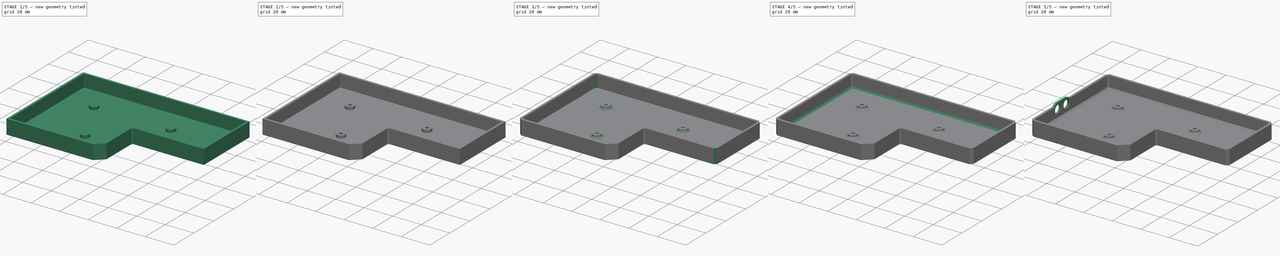
[diagram: build sequence overview — one tinted view per stage of 5, left to right]
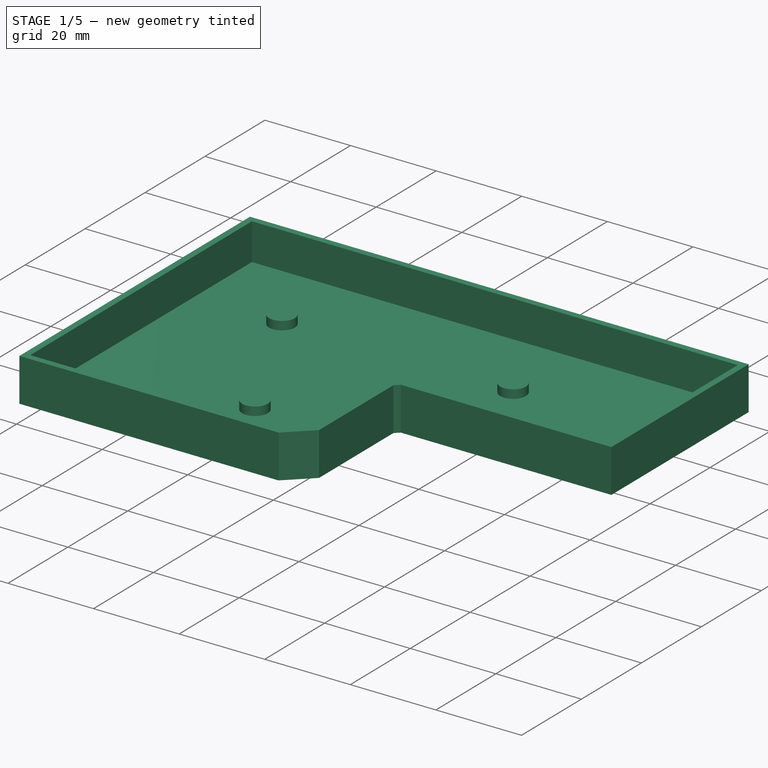
[diagram: stage 1 of 5 — iso view after this stage's code; geometry added in this stage tinted green]
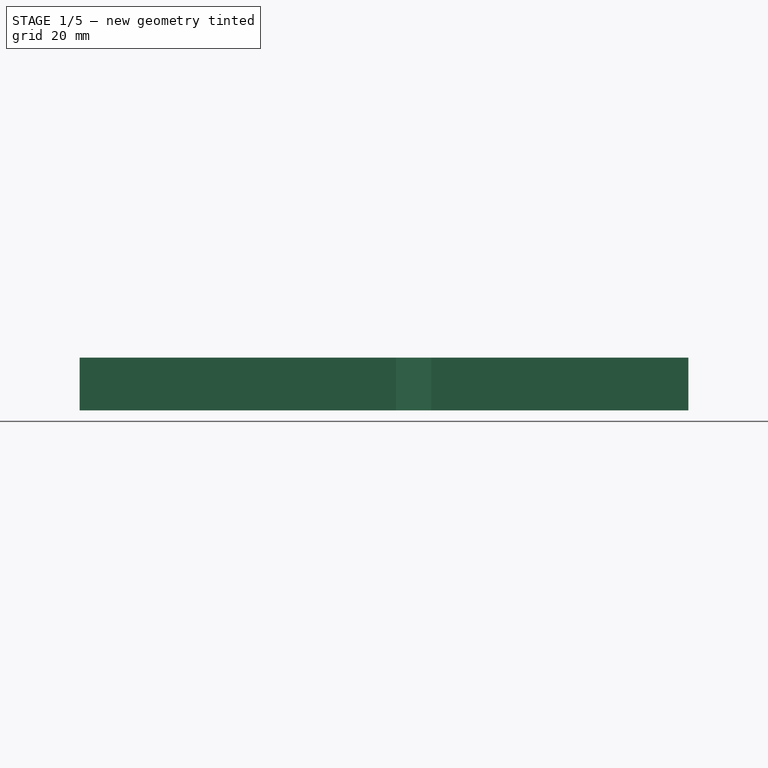
[diagram: stage 1 of 5 — front view after this stage's code; geometry added in this stage tinted green]
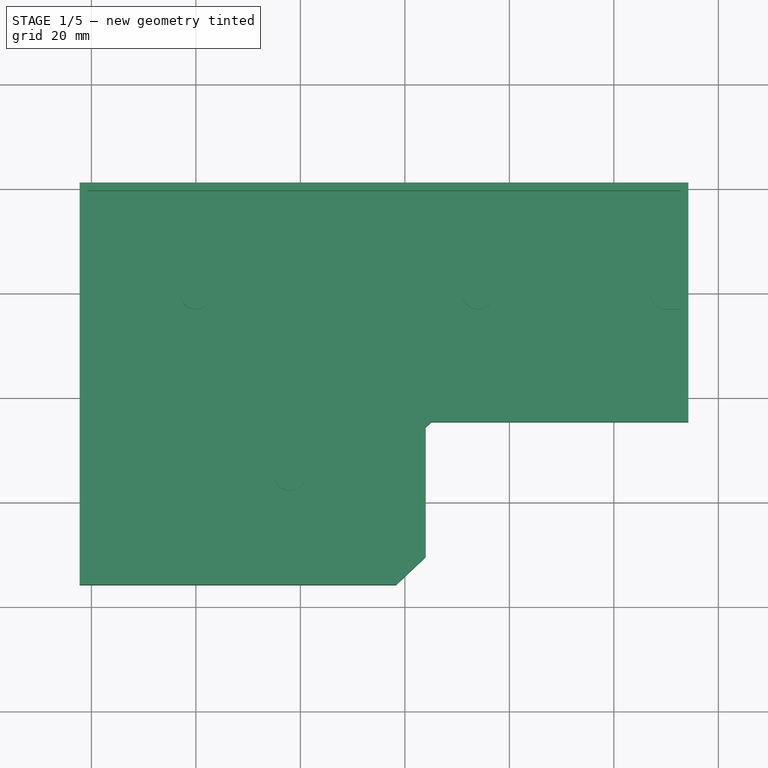
[diagram: stage 1 of 5 — top view after this stage's code; geometry added in this stage tinted green]
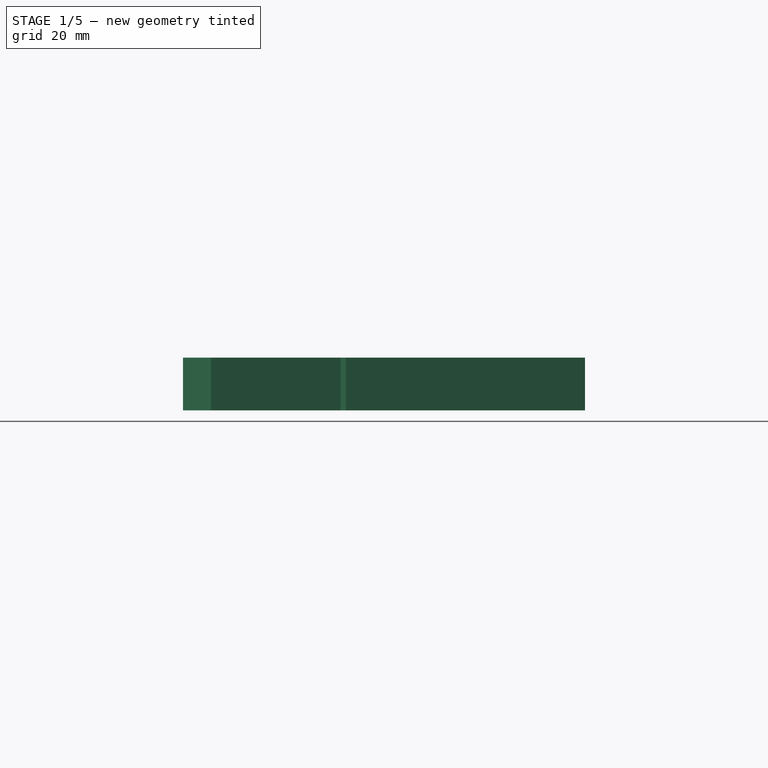
[diagram: stage 1 of 5 — right view after this stage's code; geometry added in this stage tinted green]
FCSTD DOCUMENT  (FreeCAD 1.0R39319 (Git))
Label: kb-r
License: All rights reserved
LicenseURL: https://en.wikipedia.org/wiki/All_rights_reserved
objects: Sketcher::SketchObject×11, PartDesign::Pad×6, PartDesign::Pocket×5, PartDesign::Chamfer×4, PartDesign::Fillet×1, PartDesign::Body×1
note: 71 computed .brp shape members not serialized (recipe doc carries the construction recipe); baked Part::Feature solids carry a one-line shape summary decoded from their .brp

FEATURE [Sketcher::SketchObject] Sketch
  ArcFitTolerance = 1e-06
  AttachmentSupport = -> [XY_Plane]
  FullyConstrained = false
  MakeInternals = false
  MapMode = 5
  expr: Constraints[33] = .Constraints.off
  expr: Constraints[34] = .Constraints.off
  expr: Constraints[35] = .Constraints.off
  expr: Constraints[36] = .Constraints.off
  expr: Constraints[37] = .Constraints.off
  expr: Constraints[38] = .Constraints.off
  expr: Constraints[39] = .Constraints.off
  sketch-geometry (16):
    g0: LineSegment [constr] StartX=-20.25 StartY=19.125 StartZ=0 EndX=-20.25 EndY=-53.833 EndZ=0
    g1: LineSegment [constr] StartX=-20.25 StartY=-53.833 StartZ=0 EndX=37.5 EndY=-53.833 EndZ=0
    g2: LineSegment [constr] StartX=37.5 StartY=-53.833 StartZ=0 EndX=42 EndY=-49.583 EndZ=0
    g3: LineSegment [constr] StartX=42 StartY=-49.583 StartZ=0 EndX=42 EndY=-24.792 EndZ=0
    g4: LineSegment [constr] StartX=42 StartY=-24.792 StartZ=0 EndX=44.25 EndY=-22.667 EndZ=0
    g5: LineSegment [constr] StartX=44.25 StartY=-22.667 StartZ=0 EndX=92.25 EndY=-22.667 EndZ=0
    g6: LineSegment [constr] StartX=92.25 StartY=-22.667 StartZ=0 EndX=92.25 EndY=19.125 EndZ=0
    g7: LineSegment [constr] StartX=92.25 StartY=19.125 StartZ=0 EndX=-20.25 EndY=19.125 EndZ=0
    g8: LineSegment StartX=92.75 StartY=19.625 StartZ=0 EndX=-20.75 EndY=19.625 EndZ=0
    g9: LineSegment StartX=-20.75 StartY=19.625 StartZ=0 EndX=-20.75 EndY=-54.333 EndZ=0
    g10: LineSegment StartX=-20.75 StartY=-54.333 StartZ=0 EndX=37.6988 EndY=-54.333 EndZ=0
    g11: LineSegment StartX=37.6988 StartY=-54.333 StartZ=0 EndX=42.5 EndY=-49.7985 EndZ=0
    g12: LineSegment StartX=42.5 StartY=-49.7985 StartZ=0 EndX=42.5 EndY=-25.0075 EndZ=0
    g13: LineSegment StartX=42.5 StartY=-25.0075 StartZ=0 EndX=44.4488 EndY=-23.167 EndZ=0
    g14: LineSegment StartX=44.4488 StartY=-23.167 StartZ=0 EndX=92.75 EndY=-23.167 EndZ=0
    g15: LineSegment StartX=92.75 StartY=-23.167 StartZ=0 EndX=92.75 EndY=19.625 EndZ=0
  constraints (46):
    c: Vertical(g0)
    c: Coincident(g0,g1)
    c: Horizontal(g1)
    c: Coincident(g1,g2)
    c: Coincident(g2,g3)
    c: Coincident(g3,g4)
    c: Coincident(g4,g5)
    c: Horizontal(g5)
    c: Coincident(g5,g6)
    c: Vertical(g6)
    c: Coincident(g6,g7)
    c: Coincident(g7,g0)
    c: Horizontal(g7)
    c: Vertical(g3)
    c: DistanceY(g0,g0) = 72.958
    c: Distance(g3,g0) = 62.25
    c: DistanceY(g2,g2) = 4.25
    c: DistanceX(g2,g2) = 4.5
    c: Distance(g6,g3) = 50.25
    c: DistanceX(g4,g4) = 2.25
    c: DistanceY(g4,g4) = 2.125
    c: DistanceY(g6,g6) = 41.792
    c: DistanceX(g0,g-1) = 20.25
    c: DistanceY(g-1,g0) = 19.125
    c: Coincident(g8,g9)
    c: Coincident(g8,g15)
    c: Coincident(g9,g10)
    c: Coincident(g10,g11)
    c: Coincident(g11,g12)
    c: Coincident(g12,g13)
    c: Coincident(g13,g14)
    c: Coincident(g14,g15)
    c: Distance(g7,g8) = 0.5  'off'
    c: Distance(g0,g9) = 0.5
    c: Distance(g15,g6) = 0.5
    c: Distance(g14,g5) = 0.5
    c: Distance(g13,g4) = 0.5
    c: Distance(g12,g3) = 0.5
    c: Distance(g11,g2) = 0.5
    c: Distance(g10,g1) = 0.5
    c: Horizontal(g8)
    c: Vertical(g9)
    c: Horizontal(g10)
    c: Vertical(g12)
    c: Vertical(g15)
    c: Horizontal(g14)
FEATURE [PartDesign::Pad] Pad
  Direction = (0,0,1)
  Length = 1.5
  Length2 = 10
  Profile = -> Sketch
  ReferenceAxis = -> Sketch [N_Axis]
  Refine = true
  Suppressed = false
  Type = 0
FEATURE [Sketcher::SketchObject] Sketch001
  ArcFitTolerance = 1e-06
  AttachmentSupport = -> [Pad]
  ExternalGeometry = -> [Pad]
  FullyConstrained = true
  MakeInternals = false
  MapMode = 5
  Placement = pos=(0,0,0) rot=(1,0,0;3.14159rad)
  expr: Constraints[15] = .Constraints.walltc
  expr: Constraints[16] = .Constraints.walltc
  expr: Constraints[17] = .Constraints.walltc
  expr: Constraints[18] = .Constraints.walltc
  expr: Constraints[19] = .Constraints.walltc
  expr: Constraints[22] = .Constraints.walltc
  expr: Constraints[23] = .Constraints.walltc
  sketch-geometry (16):
    g0: LineSegment StartX=-22.25 StartY=55.833 StartZ=0 EndX=-22.25 EndY=-21.125 EndZ=0
    g1: LineSegment StartX=-22.25 StartY=-21.125 StartZ=0 EndX=94.25 EndY=-21.125 EndZ=0
    g2: LineSegment StartX=94.25 StartY=-21.125 StartZ=0 EndX=94.25 EndY=24.667 EndZ=0
    g3: LineSegment StartX=94.25 StartY=24.667 StartZ=0 EndX=45.0452 EndY=24.667 EndZ=0
    g4: LineSegment StartX=45.0452 StartY=24.667 StartZ=0 EndX=44 EndY=25.6541 EndZ=0
    g5: LineSegment StartX=44 StartY=25.6541 StartZ=0 EndX=44 EndY=50.4451 EndZ=0
    g6: LineSegment StartX=44 StartY=50.4451 StartZ=0 EndX=38.2952 EndY=55.833 EndZ=0
    g7: LineSegment StartX=38.2952 StartY=55.833 StartZ=0 EndX=-22.25 EndY=55.833 EndZ=0
    g8: LineSegment StartX=-20.75 StartY=-19.625 StartZ=0 EndX=-20.75 EndY=54.333 EndZ=0
    g9: LineSegment StartX=-20.75 StartY=54.333 StartZ=0 EndX=37.6988 EndY=54.333 EndZ=0
    g10: LineSegment StartX=37.6988 StartY=54.333 StartZ=0 EndX=42.5 EndY=49.7985 EndZ=0
    g11: LineSegment StartX=42.5 StartY=49.7985 StartZ=0 EndX=42.5 EndY=25.0075 EndZ=0
    g12: LineSegment StartX=42.5 StartY=25.0075 StartZ=0 EndX=44.4488 EndY=23.167 EndZ=0
    g13: LineSegment StartX=44.4488 StartY=23.167 StartZ=0 EndX=92.75 EndY=23.167 EndZ=0
    g14: LineSegment StartX=92.75 StartY=23.167 StartZ=0 EndX=92.75 EndY=-19.625 EndZ=0
    g15: LineSegment StartX=92.75 StartY=-19.625 StartZ=0 EndX=-20.75 EndY=-19.625 EndZ=0
  constraints (40):
    c: Vertical(g0)
    c: Coincident(g0,g1)
    c: Horizontal(g1)
    c: Coincident(g1,g2)
    c: Vertical(g2)
    c: Coincident(g2,g3)
    c: Horizontal(g3)
    c: Coincident(g3,g4)
    c: Coincident(g4,g5)
    c: Vertical(g5)
    c: Coincident(g5,g6)
    c: Coincident(g6,g7)
    c: Coincident(g7,g0)
    c: Horizontal(g7)
    c: Distance(g-3,g1) = 1.5  'walltc'
    c: Distance(g-4,g0) = 1.5
    c: Distance(g2,g-10) = 1.5
    c: Distance(g3,g-9) = 1.5
    c: Distance(g5,g-7) = 1.5
    c: Distance(g7,g-5) = 1.5
    c: Parallel(g-8,g4)
    c: Parallel(g-6,g6)
    c: Distance(g4,g-8) = 1.5
    c: Distance(g6,g-6) = 1.5
    c: Coincident(g-4,g8)
    c: Coincident(g8,g-5)
    c: Coincident(g8,g9)
    c: Coincident(g9,g-6)
    c: Coincident(g9,g10)
    c: Coincident(g10,g-7)
    c: Coincident(g10,g11)
    c: Coincident(g11,g-8)
    c: Coincident(g11,g12)
    c: Coincident(g12,g-9)
    c: Coincident(g12,g13)
    c: Coincident(g13,g-10)
    c: Coincident(g13,g14)
    c: Coincident(g14,g-10)
    c: Coincident(g14,g15)
    c: Coincident(g15,g8)
FEATURE [PartDesign::Pad] Pad001
  BaseFeature = -> Pad
  Direction = (0,0,-1)
  Length = 10.1
  Length2 = 10
  Profile = -> Sketch001
  ReferenceAxis = -> Sketch001 [N_Axis]
  Refine = true
  Reversed = true
  Suppressed = false
  Type = 0
FEATURE [Sketcher::SketchObject] Sketch002
  ArcFitTolerance = 1e-06
  AttachmentSupport = -> [Pad001]
  ExternalGeometry = -> [Pad001]
  FullyConstrained = true
  MakeInternals = false
  MapMode = 5
  Placement = pos=(0,0,1.5) rot=(0,0,1;0rad)
  sketch-geometry (8):
    g0: Circle CenterX=0 CenterY=0 CenterZ=0 NormalX=0 NormalY=0 NormalZ=1 AngleXU=0 Radius=3
    g1: Circle CenterX=54 CenterY=0 CenterZ=0 NormalX=0 NormalY=0 NormalZ=1 AngleXU=0 Radius=3
    g2: ArcOfCircle CenterX=90 CenterY=0 CenterZ=0 NormalX=0 NormalY=0 NormalZ=1 AngleXU=0 Radius=3 StartAngle=1.5708 EndAngle=4.71239
    g3: Circle CenterX=18 CenterY=-34.708 CenterZ=0 NormalX=0 NormalY=0 NormalZ=1 AngleXU=0 Radius=3
    g4: LineSegment StartX=90 StartY=3 StartZ=0 EndX=92.75 EndY=3 EndZ=0
    g5: LineSegment StartX=92.75 StartY=3 StartZ=0 EndX=92.75 EndY=-3 EndZ=0
    g6: LineSegment StartX=92.75 StartY=-3 StartZ=0 EndX=90 EndY=-3 EndZ=0
    g7: LineSegment [constr] StartX=90 StartY=-3 StartZ=0 EndX=90 EndY=3 EndZ=0
  constraints (23):
    c: Coincident(g0,g-1)
    c: PointOnObject(g1,g-1)
    c: PointOnObject(g2,g-1)
    c: Equal(g0,g1)
    c: Equal(g0,g3)
    c: Equal(g0,g2)
    c: Diameter(g0) = 6
    c: DistanceX(g0,g1) = 54
    c: DistanceX(g1,g2) = 36
    c: DistanceX(g0,g3) = 18
    c: DistanceY(g3,g0) = 34.708
    c: Coincident(g4,g5)
    c: Vertical(g5)
    c: Coincident(g5,g6)
    c: Coincident(g7,g6)
    c: Coincident(g7,g4)
    c: Vertical(g7)
    c: PointOnObject(g2,g7)
    c: Horizontal(g4)
    c: Horizontal(g6)
    c: PointOnObject(g4,g-3)
    c: Coincident(g2,g4)
    c: Coincident(g2,g6)
FEATURE [PartDesign::Pad] Pad002
  BaseFeature = -> Pad001
  Direction = (0,0,1)
  Length = 2
  Length2 = 10
  Profile = -> Sketch002
  ReferenceAxis = -> Sketch002 [N_Axis]
  Refine = true
  Suppressed = false
  Type = 0
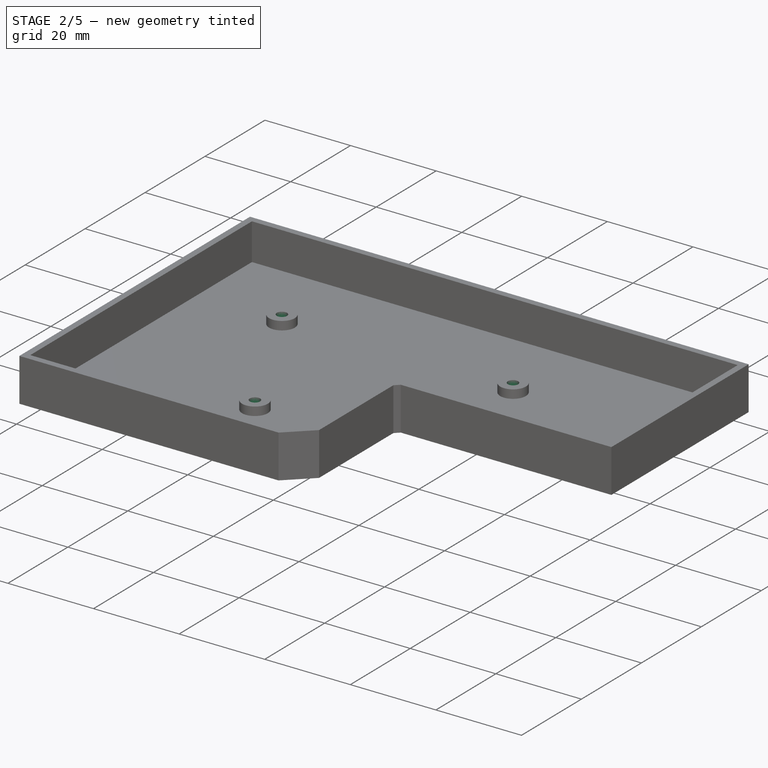
[diagram: stage 2 of 5 — iso view after this stage's code; geometry added in this stage tinted green]
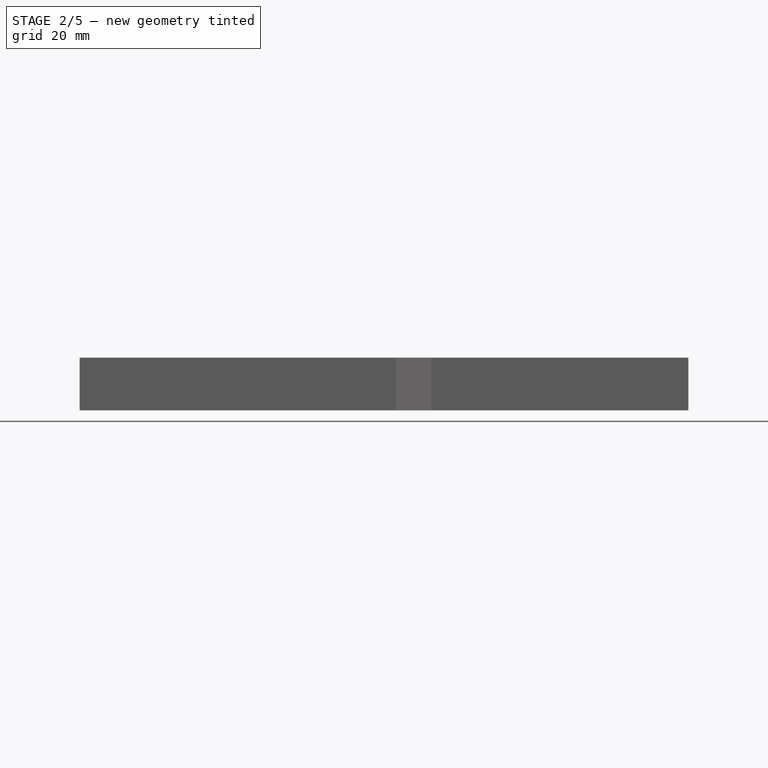
[diagram: stage 2 of 5 — front view after this stage's code; geometry added in this stage tinted green]
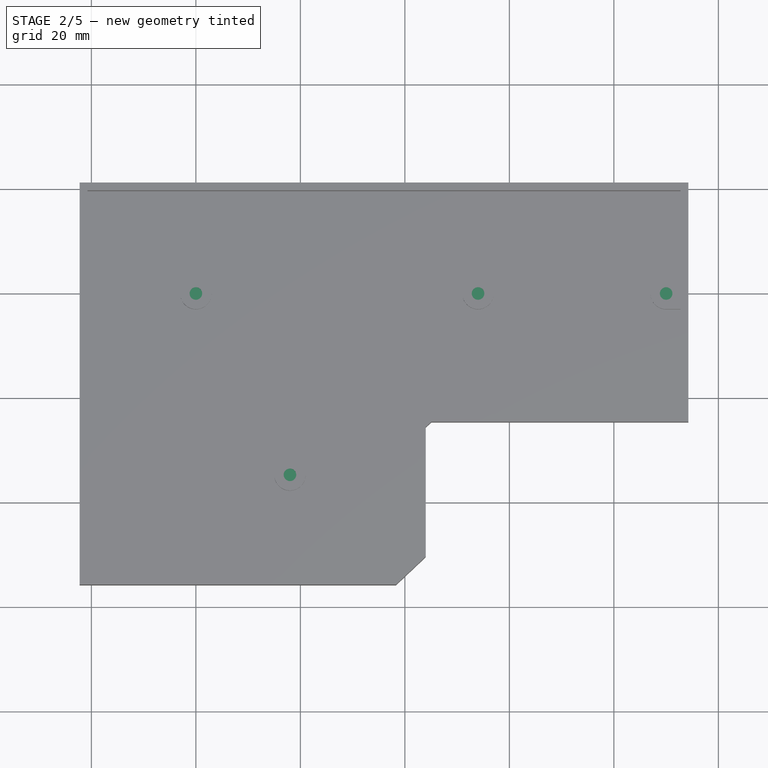
[diagram: stage 2 of 5 — top view after this stage's code; geometry added in this stage tinted green]
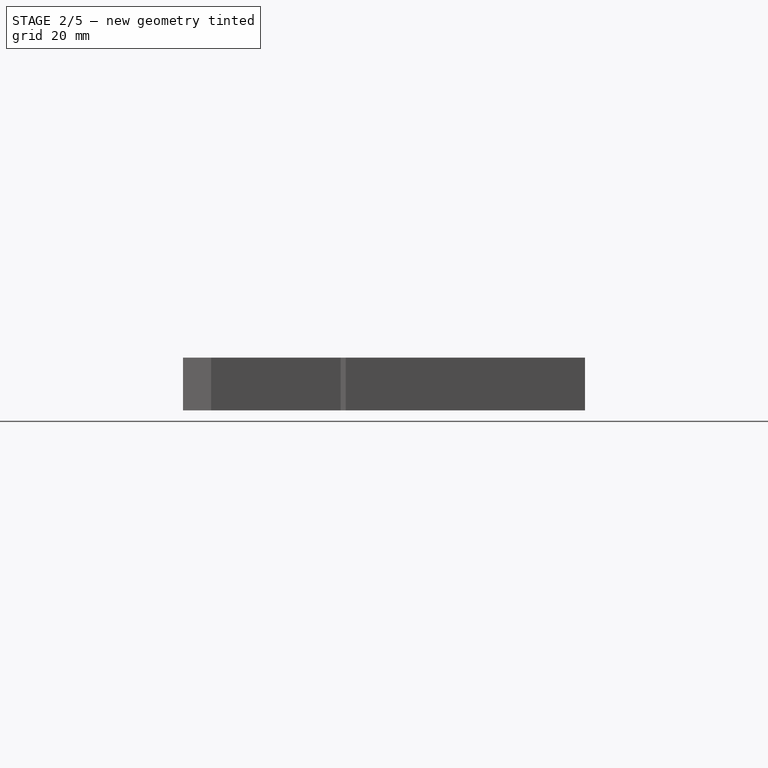
[diagram: stage 2 of 5 — right view after this stage's code; geometry added in this stage tinted green]
FEATURE [Sketcher::SketchObject] Sketch003
  ArcFitTolerance = 1e-06
  AttachmentSupport = -> [Pad002]
  ExternalGeometry = -> [Pad002]
  FullyConstrained = true
  MakeInternals = false
  MapMode = 5
  Placement = pos=(0,0,3.5) rot=(0,0,1;0rad)
  sketch-geometry (4):
    g0: Circle CenterX=0 CenterY=0 CenterZ=0 NormalX=0 NormalY=0 NormalZ=1 AngleXU=0 Radius=1.2
    g1: Circle CenterX=54 CenterY=0 CenterZ=0 NormalX=0 NormalY=0 NormalZ=1 AngleXU=0 Radius=1.2
    g2: Circle CenterX=18 CenterY=-34.708 CenterZ=0 NormalX=0 NormalY=0 NormalZ=1 AngleXU=0 Radius=1.2
    g3: Circle CenterX=90 CenterY=0 CenterZ=0 NormalX=0 NormalY=0 NormalZ=1 AngleXU=0 Radius=1.2
  constraints (8):
    c: Coincident(g0,g-1)
    c: Coincident(g1,g-4)
    c: Coincident(g2,g-6)
    c: Coincident(g3,g-5)
    c: Equal(g0,g1)
    c: Equal(g2,g0)
    c: Equal(g3,g0)
    c: Diameter(g0) = 2.4
FEATURE [PartDesign::Pocket] Pocket
  BaseFeature = -> Pad002
  Direction = (0,0,-1)
  Length = 5
  Length2 = 5
  Profile = -> Sketch003
  ReferenceAxis = -> Sketch003 [N_Axis]
  Refine = true
  Suppressed = false
  Type = 1
FEATURE [Sketcher::SketchObject] Sketch004
  ArcFitTolerance = 1e-06
  AttachmentSupport = -> [Pocket]
  ExternalGeometry = -> [Pocket]
  FullyConstrained = true
  MakeInternals = false
  MapMode = 5
  Placement = pos=(0,0,0) rot=(1,0,0;3.14159rad)
  sketch-geometry (28):
    g0: LineSegment StartX=18 StartY=37.1906 StartZ=0 EndX=15.85 EndY=35.9493 EndZ=0
    g1: LineSegment StartX=15.85 StartY=35.9493 StartZ=0 EndX=15.85 EndY=33.4667 EndZ=0
    g2: LineSegment StartX=15.85 StartY=33.4667 StartZ=0 EndX=18 EndY=32.2254 EndZ=0
    g3: LineSegment StartX=18 StartY=32.2254 StartZ=0 EndX=20.15 EndY=33.4667 EndZ=0
    g4: LineSegment StartX=20.15 StartY=33.4667 StartZ=0 EndX=20.15 EndY=35.9493 EndZ=0
    g5: LineSegment StartX=20.15 StartY=35.9493 StartZ=0 EndX=18 EndY=37.1906 EndZ=0
    g6: Circle [constr] CenterX=18 CenterY=34.708 CenterZ=0 NormalX=0 NormalY=0 NormalZ=1 AngleXU=0 Radius=2.48261
    g7: LineSegment StartX=0 StartY=2.48261 StartZ=0 EndX=-2.15 EndY=1.2413 EndZ=0
    g8: LineSegment StartX=-2.15 StartY=1.2413 StartZ=0 EndX=-2.15 EndY=-1.2413 EndZ=0
    g9: LineSegment StartX=-2.15 StartY=-1.2413 StartZ=0 EndX=0 EndY=-2.48261 EndZ=0
    g10: LineSegment StartX=0 StartY=-2.48261 StartZ=0 EndX=2.15 EndY=-1.2413 EndZ=0
    g11: LineSegment StartX=2.15 StartY=-1.2413 StartZ=0 EndX=2.15 EndY=1.2413 EndZ=0
    g12: LineSegment StartX=2.15 StartY=1.2413 StartZ=0 EndX=0 EndY=2.48261 EndZ=0
    g13: Circle [constr] CenterX=0 CenterY=0 CenterZ=0 NormalX=0 NormalY=0 NormalZ=1 AngleXU=0 Radius=2.48261
    g14: LineSegment StartX=54 StartY=2.48261 StartZ=0 EndX=51.85 EndY=1.2413 EndZ=0
    g15: LineSegment StartX=51.85 StartY=1.2413 StartZ=0 EndX=51.85 EndY=-1.2413 EndZ=0
    g16: LineSegment StartX=51.85 StartY=-1.2413 StartZ=0 EndX=54 EndY=-2.48261 EndZ=0
    g17: LineSegment StartX=54 StartY=-2.48261 StartZ=0 EndX=56.15 EndY=-1.2413 EndZ=0
    g18: LineSegment StartX=56.15 StartY=-1.2413 StartZ=0 EndX=56.15 EndY=1.2413 EndZ=0
    g19: LineSegment StartX=56.15 StartY=1.2413 StartZ=0 EndX=54 EndY=2.48261 EndZ=0
    g20: Circle [constr] CenterX=54 CenterY=0 CenterZ=0 NormalX=0 NormalY=0 NormalZ=1 AngleXU=0 Radius=2.48261
    g21: LineSegment StartX=90 StartY=2.48261 StartZ=0 EndX=87.85 EndY=1.2413 EndZ=0
    g22: LineSegment StartX=87.85 StartY=1.2413 StartZ=0 EndX=87.85 EndY=-1.2413 EndZ=0
    g23: LineSegment StartX=87.85 StartY=-1.2413 StartZ=0 EndX=90 EndY=-2.48261 EndZ=0
    g24: LineSegment StartX=90 StartY=-2.48261 StartZ=0 EndX=92.15 EndY=-1.2413 EndZ=0
    g25: LineSegment StartX=92.15 StartY=-1.2413 StartZ=0 EndX=92.15 EndY=1.2413 EndZ=0
    g26: LineSegment StartX=92.15 StartY=1.2413 StartZ=0 EndX=90 EndY=2.48261 EndZ=0
    g27: Circle [constr] CenterX=90 CenterY=0 CenterZ=0 NormalX=0 NormalY=0 NormalZ=1 AngleXU=0 Radius=2.48261
  constraints (64):
    c: Coincident(g0,g1)
    c: Coincident(g1,g2)
    c: Coincident(g2,g3)
    c: Coincident(g3,g4)
    c: Coincident(g4,g5)
    c: Coincident(g5,g0)
    c: Equal(g0, g1-g5) x5
    c: PointOnObject(g0,g6)
    c: PointOnObject(g1,g6)
    c: PointOnObject(g2,g6)
    c: PointOnObject(g3,g6)
    c: PointOnObject(g4,g6)
    c: PointOnObject(g5,g6)
    c: Coincident(g6,g-3)
    c: Coincident(g7,g8)
    c: Coincident(g8,g9)
    c: Coincident(g9,g10)
    c: Coincident(g10,g11)
    c: Coincident(g11,g12)
    c: Coincident(g12,g7)
    c: Equal(g7, g8-g12) x5
    c: PointOnObject(g7,g13)
    c: PointOnObject(g8,g13)
    c: PointOnObject(g9,g13)
    c: PointOnObject(g10,g13)
    c: PointOnObject(g11,g13)
    c: PointOnObject(g12,g13)
    c: Coincident(g13,g-1)
    c: PointOnObject(g12,g-2)
    c: Coincident(g14,g15)
    c: Coincident(g15,g16)
    c: Coincident(g16,g17)
    c: Coincident(g17,g18)
    c: Coincident(g18,g19)
    c: Coincident(g19,g14)
    c: Equal(g14, g15-g19) x5
    c: PointOnObject(g14,g20)
    c: PointOnObject(g15,g20)
    c: PointOnObject(g16,g20)
    c: PointOnObject(g17,g20)
    c: PointOnObject(g18,g20)
    c: PointOnObject(g19,g20)
    c: Coincident(g20,g-5)
    c: Coincident(g21,g22)
    c: Coincident(g22,g23)
    c: Coincident(g23,g24)
    c: Coincident(g24,g25)
    c: Coincident(g25,g26)
    c: Coincident(g26,g21)
    c: Equal(g21, g22-g26) x5
    c: PointOnObject(g21,g27)
    c: PointOnObject(g22,g27)
    c: PointOnObject(g23,g27)
    c: PointOnObject(g24,g27)
    c: PointOnObject(g25,g27)
    c: PointOnObject(g26,g27)
    c: Coincident(g27,g-6)
    c: Vertical(g4)
    c: Vertical(g18)
    c: Vertical(g25)
    c: Equal(g6,g13)
    c: Equal(g13,g20)
    c: Equal(g27,g13)
    c: Distance(g11,g8) = 4.3
FEATURE [PartDesign::Pocket] Pocket001
  BaseFeature = -> Pocket
  Direction = (0,0,1)
  Length = 2.7
  Length2 = 5
  Profile = -> Sketch004
  ReferenceAxis = -> Sketch004 [N_Axis]
  Refine = true
  Suppressed = false
  Type = 0
FEATURE [Sketcher::SketchObject] Sketch005
  ArcFitTolerance = 1e-06
  AttachmentSupport = -> [Pocket001]
  ExternalGeometry = -> [Pocket001]
  FullyConstrained = true
  MakeInternals = false
  MapMode = 5
  Placement = pos=(0,0,0) rot=(1,0,0;3.14159rad)
  sketch-geometry (28):
    g0: LineSegment StartX=18 StartY=37.1906 StartZ=0 EndX=15.85 EndY=35.9493 EndZ=0
    g1: LineSegment StartX=15.85 StartY=35.9493 StartZ=0 EndX=15.85 EndY=33.4667 EndZ=0
    g2: LineSegment StartX=15.85 StartY=33.4667 StartZ=0 EndX=18 EndY=32.2254 EndZ=0
    g3: LineSegment StartX=18 StartY=32.2254 StartZ=0 EndX=20.15 EndY=33.4667 EndZ=0
    g4: LineSegment StartX=20.15 StartY=33.4667 StartZ=0 EndX=20.15 EndY=35.9493 EndZ=0
    g5: LineSegment StartX=20.15 StartY=35.9493 StartZ=0 EndX=18 EndY=37.1906 EndZ=0
    g6: Circle [constr] CenterX=18 CenterY=34.708 CenterZ=0 NormalX=0 NormalY=0 NormalZ=1 AngleXU=0 Radius=2.48261
    g7: LineSegment StartX=0 StartY=2.48261 StartZ=0 EndX=-2.15 EndY=1.2413 EndZ=0
    g8: LineSegment StartX=-2.15 StartY=1.2413 StartZ=0 EndX=-2.15 EndY=-1.2413 EndZ=0
    g9: LineSegment StartX=-2.15 StartY=-1.2413 StartZ=0 EndX=0 EndY=-2.48261 EndZ=0
    g10: LineSegment StartX=0 StartY=-2.48261 StartZ=0 EndX=2.15 EndY=-1.2413 EndZ=0
    g11: LineSegment StartX=2.15 StartY=-1.2413 StartZ=0 EndX=2.15 EndY=1.2413 EndZ=0
    g12: LineSegment StartX=2.15 StartY=1.2413 StartZ=0 EndX=0 EndY=2.48261 EndZ=0
    g13: Circle [constr] CenterX=0 CenterY=0 CenterZ=0 NormalX=0 NormalY=0 NormalZ=1 AngleXU=0 Radius=2.48261
    g14: LineSegment StartX=54 StartY=2.48261 StartZ=0 EndX=51.85 EndY=1.2413 EndZ=0
    g15: LineSegment StartX=51.85 StartY=1.2413 StartZ=0 EndX=51.85 EndY=-1.2413 EndZ=0
    g16: LineSegment StartX=51.85 StartY=-1.2413 StartZ=0 EndX=54 EndY=-2.48261 EndZ=0
    g17: LineSegment StartX=54 StartY=-2.48261 StartZ=0 EndX=56.15 EndY=-1.2413 EndZ=0
    g18: LineSegment StartX=56.15 StartY=-1.2413 StartZ=0 EndX=56.15 EndY=1.2413 EndZ=0
    g19: LineSegment StartX=56.15 StartY=1.2413 StartZ=0 EndX=54 EndY=2.48261 EndZ=0
    g20: Circle [constr] CenterX=54 CenterY=0 CenterZ=0 NormalX=0 NormalY=0 NormalZ=1 AngleXU=0 Radius=2.48261
    g21: LineSegment StartX=90 StartY=2.48261 StartZ=0 EndX=87.85 EndY=1.2413 EndZ=0
    g22: LineSegment StartX=87.85 StartY=1.2413 StartZ=0 EndX=87.85 EndY=-1.2413 EndZ=0
    g23: LineSegment StartX=87.85 StartY=-1.2413 StartZ=0 EndX=90 EndY=-2.48261 EndZ=0
    g24: LineSegment StartX=90 StartY=-2.48261 StartZ=0 EndX=92.15 EndY=-1.2413 EndZ=0
    g25: LineSegment StartX=92.15 StartY=-1.2413 StartZ=0 EndX=92.15 EndY=1.2413 EndZ=0
    g26: LineSegment StartX=92.15 StartY=1.2413 StartZ=0 EndX=90 EndY=2.48261 EndZ=0
    g27: Circle [constr] CenterX=90 CenterY=0 CenterZ=0 NormalX=0 NormalY=0 NormalZ=1 AngleXU=0 Radius=2.48261
  constraints (60):
    c: Coincident(g0,g1)
    c: Coincident(g1,g2)
    c: Coincident(g2,g3)
    c: Coincident(g3,g4)
    c: Coincident(g4,g5)
    c: Coincident(g5,g0)
    c: Equal(g0, g1-g5) x5
    c: PointOnObject(g0,g6)
    c: PointOnObject(g1,g6)
    c: PointOnObject(g2,g6)
    c: PointOnObject(g3,g6)
    c: PointOnObject(g4,g6)
    c: PointOnObject(g5,g6)
    c: Coincident(g6,g-3)
    c: Coincident(g5,g-4)
    c: Coincident(g7,g8)
    c: Coincident(g8,g9)
    c: Coincident(g9,g10)
    c: Coincident(g10,g11)
    c: Coincident(g11,g12)
    c: Coincident(g12,g7)
    c: Equal(g7, g8-g12) x5
    c: PointOnObject(g7,g13)
    c: PointOnObject(g8,g13)
    c: PointOnObject(g9,g13)
    c: PointOnObject(g10,g13)
    c: PointOnObject(g11,g13)
    c: PointOnObject(g12,g13)
    c: Coincident(g13,g-1)
    c: Coincident(g12,g-6)
    c: Coincident(g14,g15)
    c: Coincident(g15,g16)
    c: Coincident(g16,g17)
    c: Coincident(g17,g18)
    c: Coincident(g18,g19)
    c: Coincident(g19,g14)
    c: Equal(g14, g15-g19) x5
    c: PointOnObject(g14,g20)
    c: PointOnObject(g15,g20)
    c: PointOnObject(g16,g20)
    c: PointOnObject(g17,g20)
    c: PointOnObject(g18,g20)
    c: PointOnObject(g19,g20)
    c: Coincident(g20,g-7)
    c: Coincident(g19,g-8)
    c: Coincident(g21,g22)
    c: Coincident(g22,g23)
    c: Coincident(g23,g24)
    c: Coincident(g24,g25)
    c: Coincident(g25,g26)
    c: Coincident(g26,g21)
    c: Equal(g21, g22-g26) x5
    c: PointOnObject(g21,g27)
    c: PointOnObject(g22,g27)
    c: PointOnObject(g23,g27)
    c: PointOnObject(g24,g27)
    c: PointOnObject(g25,g27)
    c: PointOnObject(g26,g27)
    c: Coincident(g27,g-9)
    c: Coincident(g26,g-10)
FEATURE [PartDesign::Pad] Pad003
  BaseFeature = -> Pocket001
  Direction = (0,0,-1)
  Length = 0.8
  Length2 = 10
  Profile = -> Sketch005
  ReferenceAxis = -> Sketch005 [N_Axis]
  Refine = true
  Reversed = true
  Suppressed = false
  Type = 0
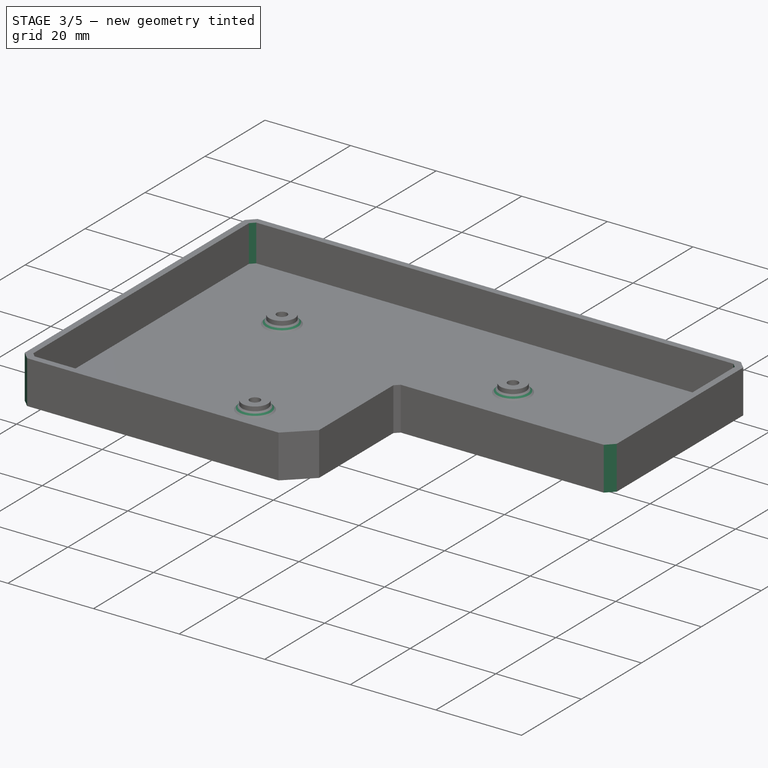
[diagram: stage 3 of 5 — iso view after this stage's code; geometry added in this stage tinted green]
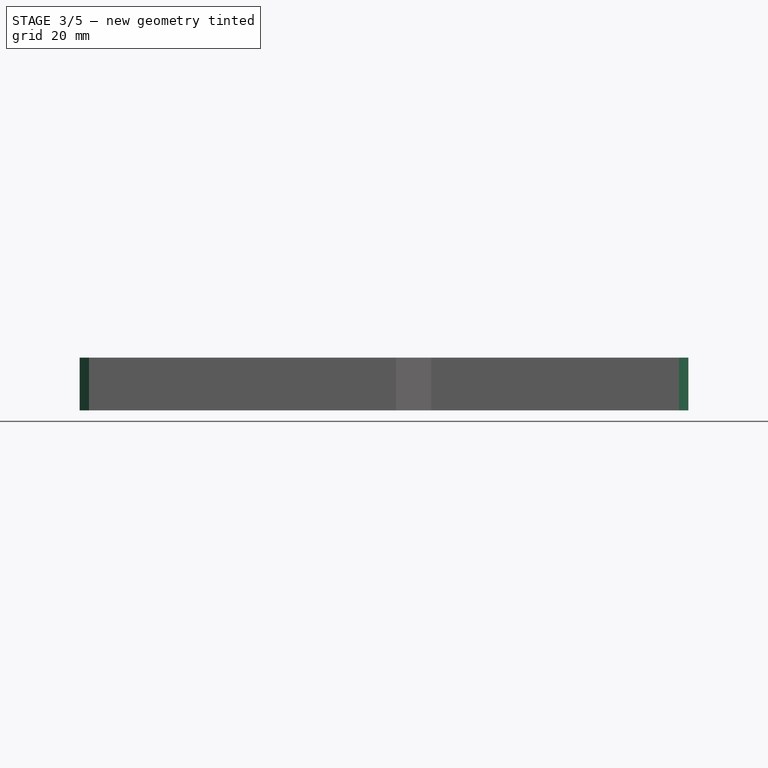
[diagram: stage 3 of 5 — front view after this stage's code; geometry added in this stage tinted green]
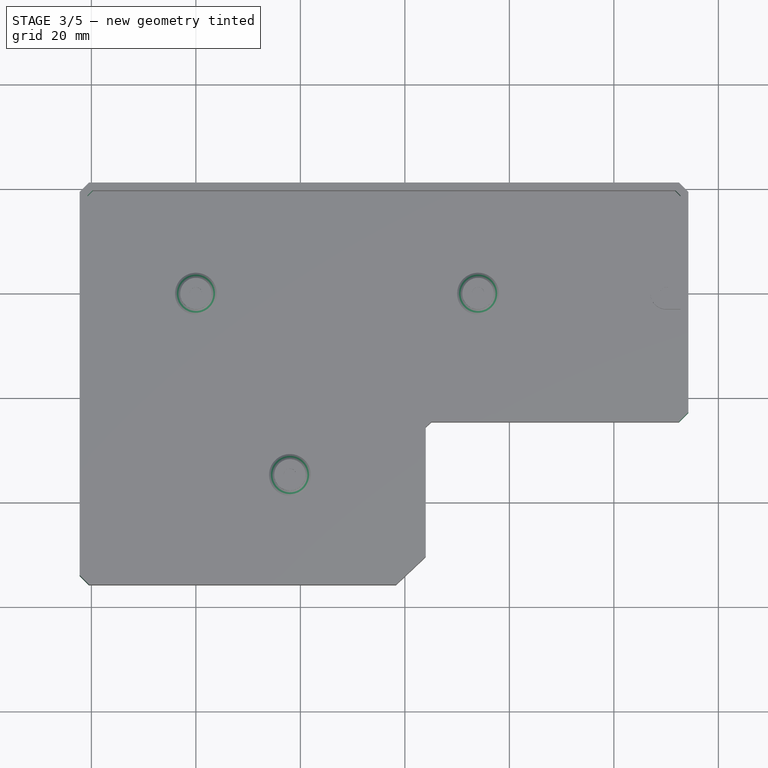
[diagram: stage 3 of 5 — top view after this stage's code; geometry added in this stage tinted green]
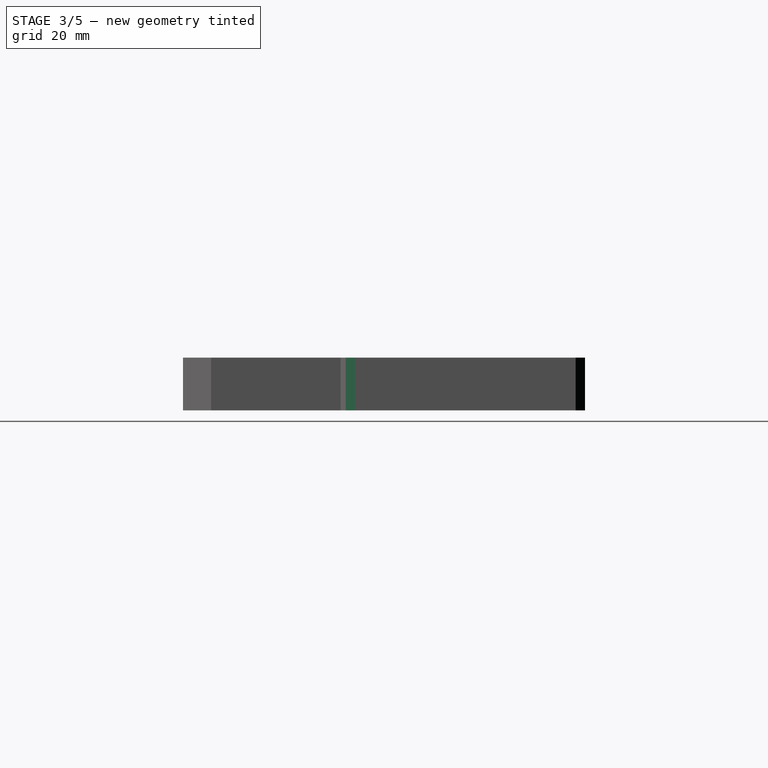
[diagram: stage 3 of 5 — right view after this stage's code; geometry added in this stage tinted green]
FEATURE [PartDesign::Chamfer] Chamfer
  Angle = 45
  Base = -> Pad003 [Edge51,Edge35,Edge34,Edge45]
  BaseFeature = -> Pad003
  ChamferType = 0
  FlipDirection = false
  Refine = true
  Size = 1
  Size2 = 1
  SupportTransform = false
  Suppressed = false
  UseAllEdges = false
FEATURE [PartDesign::Chamfer] Chamfer001
  Angle = 45
  Base = -> Chamfer [Edge52,Edge50,Edge49,Edge54]
  BaseFeature = -> Chamfer
  ChamferType = 0
  FlipDirection = false
  Refine = true
  Size = 1.8
  Size2 = 1
  SupportTransform = false
  Suppressed = false
  UseAllEdges = false
FEATURE [Sketcher::SketchObject] Sketch006
  ArcFitTolerance = 1e-06
  FullyConstrained = true
  MakeInternals = false
  MapMode = 5
  Placement = pos=(0,0,0) rot=(1,0,0;3.14159rad)
  expr: Constraints[19] = .Constraints.feet
  expr: Constraints[21] = .Constraints.feet
  expr: Constraints[22] = .Constraints.feet
  expr: Constraints[23] = .Constraints.feet
  expr: Constraints[24] = .Constraints.feet
  sketch-geometry (10):
    g0: Circle CenterX=-15.05 CenterY=48.633 CenterZ=0 NormalX=0 NormalY=0 NormalZ=1 AngleXU=0 Radius=4.2
    g1: Circle CenterX=36.8 CenterY=48.633 CenterZ=0 NormalX=0 NormalY=0 NormalZ=1 AngleXU=0 Radius=4.2
    g2: Circle CenterX=-15.05 CenterY=-13.925 CenterZ=0 NormalX=0 NormalY=0 NormalZ=1 AngleXU=0 Radius=4.2
    g3: Circle CenterX=87.05 CenterY=17.467 CenterZ=0 NormalX=0 NormalY=0 NormalZ=1 AngleXU=0 Radius=4.2
    g4: Circle CenterX=87.05 CenterY=-13.925 CenterZ=0 NormalX=0 NormalY=0 NormalZ=1 AngleXU=0 Radius=4.2
    g5: LineSegment [constr] StartX=-15.05 StartY=48.633 StartZ=0 EndX=-15.05 EndY=-13.925 EndZ=0
    g6: LineSegment [constr] StartX=-15.05 StartY=-13.925 StartZ=0 EndX=87.05 EndY=-13.925 EndZ=0
    g7: LineSegment [constr] StartX=87.05 StartY=-13.925 StartZ=0 EndX=87.05 EndY=17.467 EndZ=0
    g8: LineSegment [constr] StartX=-15.05 StartY=48.633 StartZ=0 EndX=36.8 EndY=48.633 EndZ=0
    g9: LineSegment [constr] StartX=36.8 StartY=48.633 StartZ=0 EndX=87.05 EndY=17.467 EndZ=0
  constraints (25):
    c: Equal(g2,g4)
    c: Equal(g3,g4)
    c: Equal(g2,g0)
    c: Equal(g1,g0)
    c: Diameter(g0) = 8.4
    c: Coincident(g5,g0)
    c: Coincident(g5,g2)
    c: Vertical(g5)
    c: Coincident(g5,g6)
    c: Coincident(g6,g4)
    c: Horizontal(g6)
    c: Coincident(g6,g7)
    c: Coincident(g7,g3)
    c: Vertical(g7)
    c: Coincident(g8,g0)
    c: Coincident(g8,g1)
    c: Horizontal(g8)
    c: Coincident(g8,g9)
    c: Coincident(g9,g3)
    c: Distance(g5,g-5) = 6.5
    c: Distance(g8,g-3) = 6.5  'feet'
    c: Distance(g-4,g6) = 6.5
    c: Distance(g-6,g7) = 6.5
    c: Distance(g1,g-8) = 6.5
    c: Distance(g3,g-7) = 6.5
FEATURE [PartDesign::Pocket] Pocket002
  BaseFeature = -> Chamfer001
  Direction = (0,1e-16,1)
  Length = 0.8
  Length2 = 5
  Profile = -> Sketch006
  ReferenceAxis = -> Sketch006 [N_Axis]
  Refine = true
  Suppressed = false
  Type = 0
FEATURE [PartDesign::Chamfer] Chamfer004
  Angle = 45
  Base = -> Pocket002 [Edge87,Edge86,Edge85]
  BaseFeature = -> Pocket002
  ChamferType = 0
  FlipDirection = false
  Refine = true
  Size = 1
  Size2 = 1
  SupportTransform = false
  Suppressed = false
  UseAllEdges = false
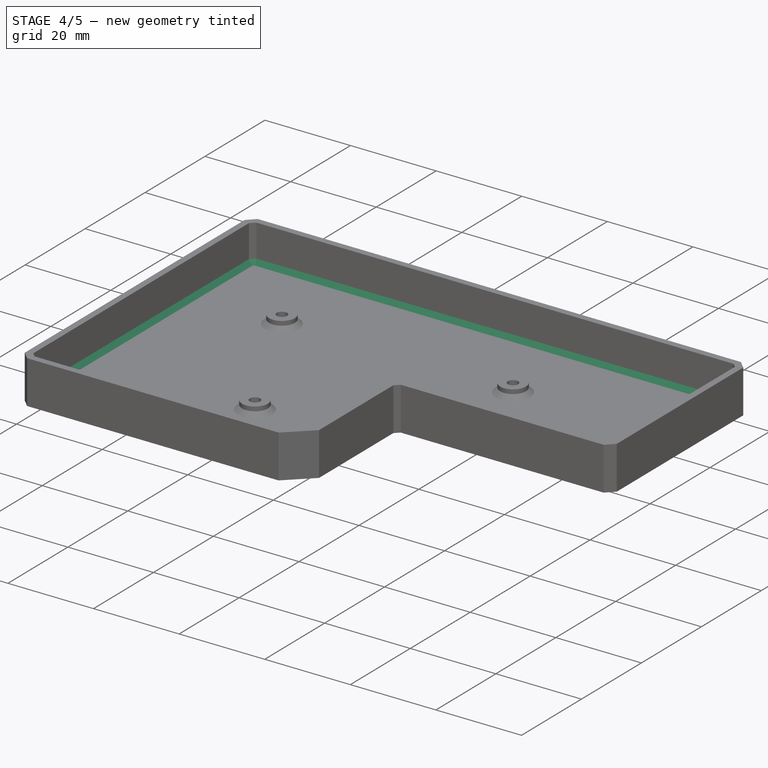
[diagram: stage 4 of 5 — iso view after this stage's code; geometry added in this stage tinted green]
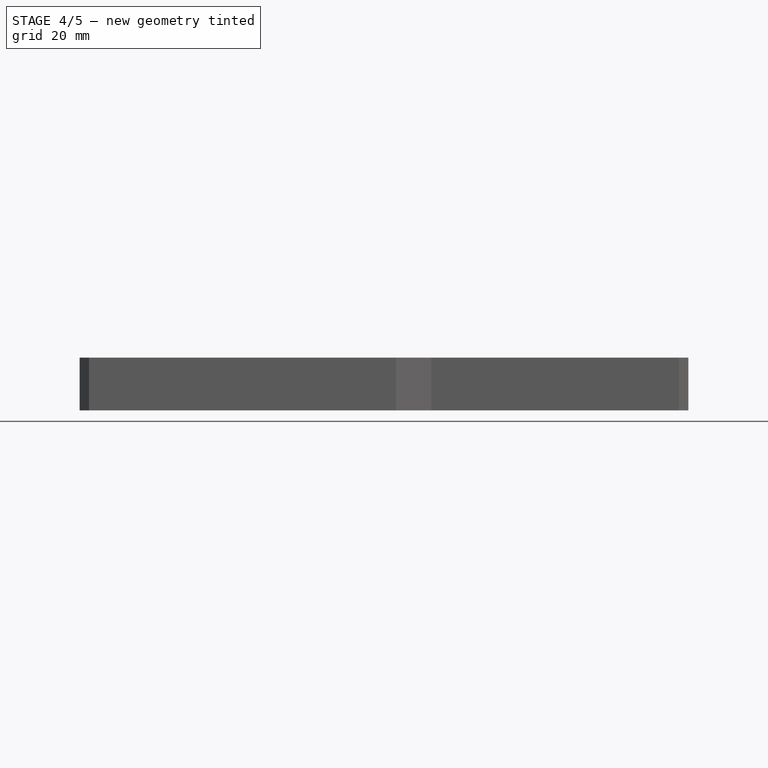
[diagram: stage 4 of 5 — front view after this stage's code; geometry added in this stage tinted green]
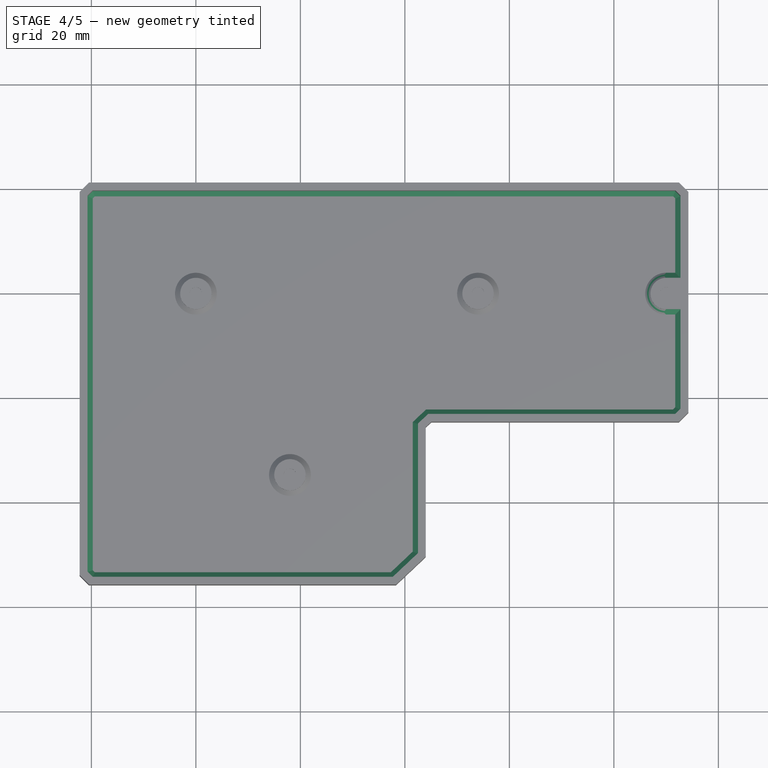
[diagram: stage 4 of 5 — top view after this stage's code; geometry added in this stage tinted green]
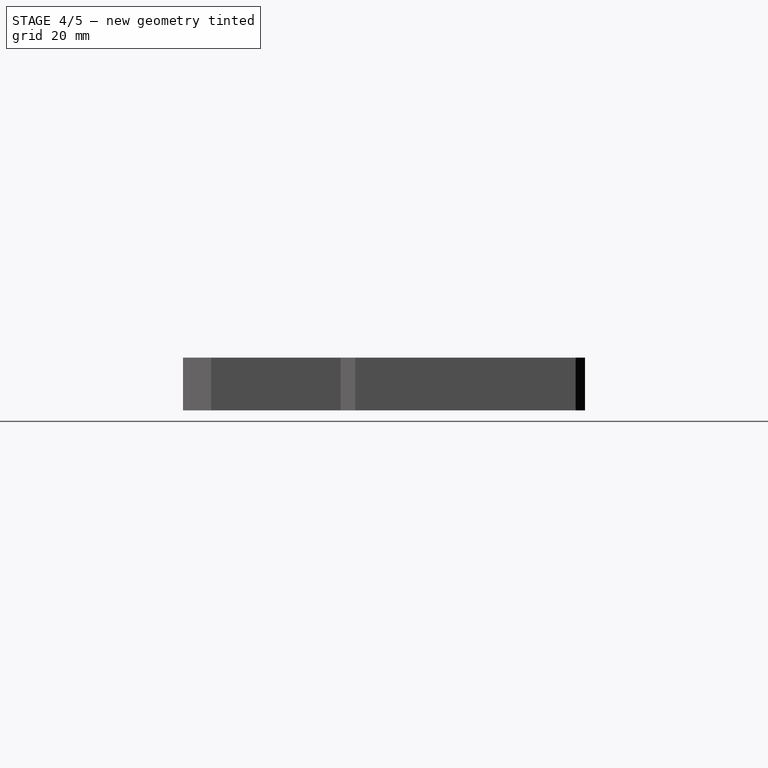
[diagram: stage 4 of 5 — right view after this stage's code; geometry added in this stage tinted green]
FEATURE [PartDesign::Chamfer] Chamfer005
  Angle = 45
  Base = -> Chamfer004 [Edge2,Edge10,Edge8,Edge6,Edge4,Edge3,Edge5,Edge12,Edge14,Edge16,Edge17,Edge15,Edge13,Edge7,Edge9,Edge11]
  BaseFeature = -> Chamfer004
  ChamferType = 0
  FlipDirection = false
  Refine = true
  Size = 1
  Size2 = 1
  SupportTransform = false
  Suppressed = false
  UseAllEdges = false
FEATURE [Sketcher::SketchObject] Sketch007
  ArcFitTolerance = 1e-06
  AttachmentSupport = -> [Chamfer005]
  FullyConstrained = true
  MakeInternals = false
  MapMode = 5
  Placement = pos=(0,0,0) rot=(1,0,0;3.14159rad)
  sketch-geometry (1):
    g0: Circle CenterX=32 CenterY=13.5 CenterZ=0 NormalX=0 NormalY=0 NormalZ=1 AngleXU=0 Radius=0.25
  constraints (3):
    c: DistanceX(g-1,g0) = 32
    c: DistanceY(g-1,g0) = 13.5
    c: Diameter(g0) = 0.5
FEATURE [PartDesign::Pocket] Pocket003
  BaseFeature = -> Chamfer005
  Direction = (0,0,1)
  Length = 0.3
  Length2 = 5
  Profile = -> Sketch007
  ReferenceAxis = -> Sketch007 [N_Axis]
  Refine = true
  Suppressed = false
  Type = 0
FEATURE [PartDesign::Fillet] Fillet
  Base = -> Pocket003 [Edge183]
  BaseFeature = -> Pocket003
  Radius = 0.2
  Refine = true
  SupportTransform = false
  Suppressed = false
  UseAllEdges = false
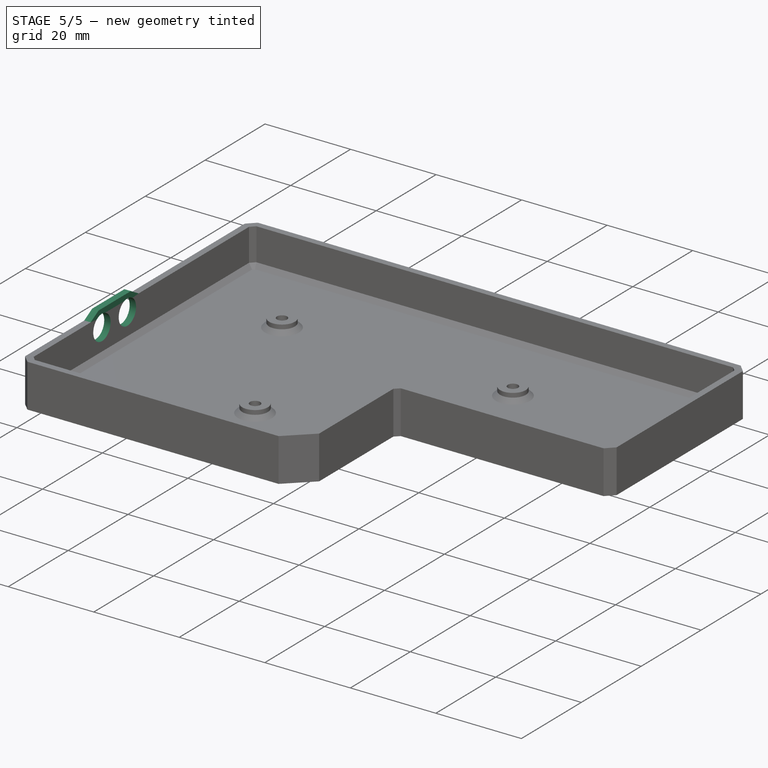
[diagram: stage 5 of 5 — iso view after this stage's code; geometry added in this stage tinted green]
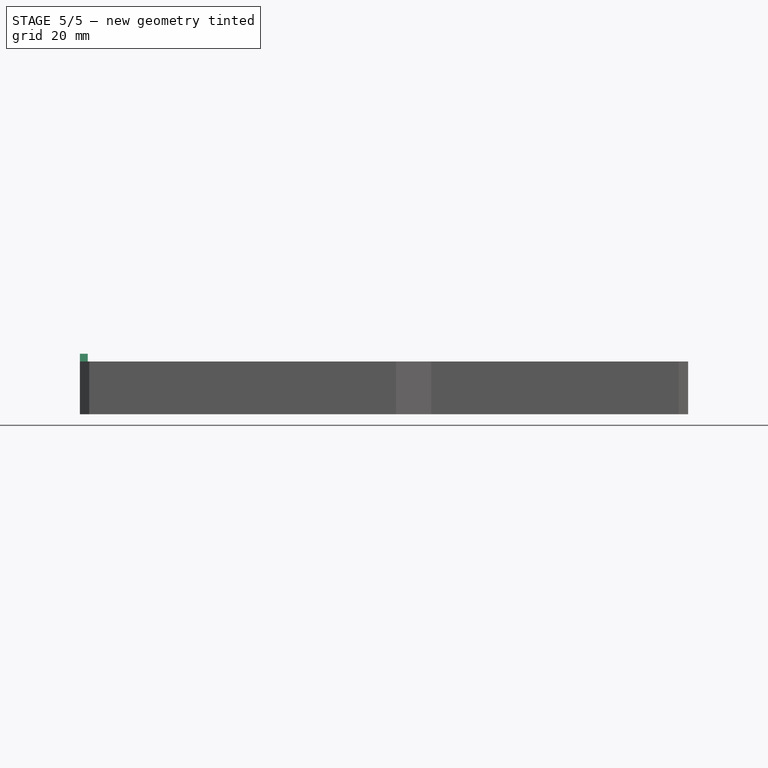
[diagram: stage 5 of 5 — front view after this stage's code; geometry added in this stage tinted green]
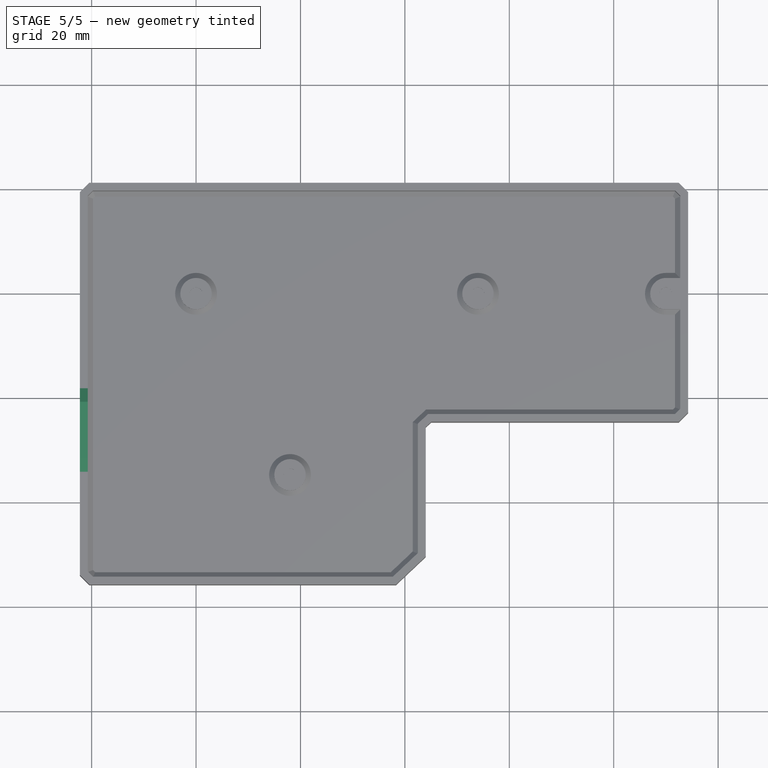
[diagram: stage 5 of 5 — top view after this stage's code; geometry added in this stage tinted green]
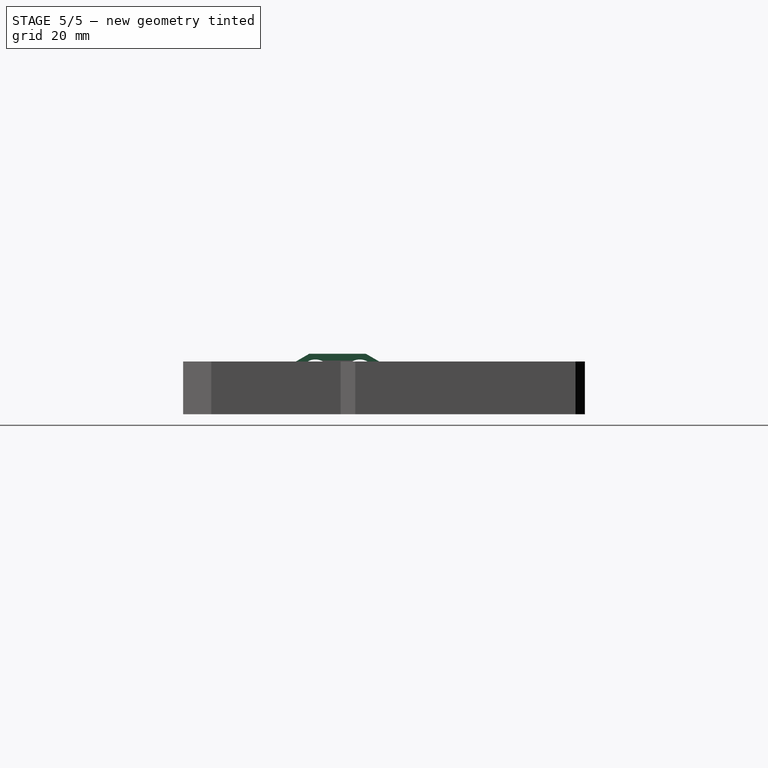
[diagram: stage 5 of 5 — right view after this stage's code; geometry added in this stage tinted green]
FEATURE [Sketcher::SketchObject] Sketch008
  ArcFitTolerance = 1e-06
  AttachmentSupport = -> [Fillet]
  ExternalGeometry = -> [Fillet]
  FullyConstrained = true
  MakeInternals = false
  MapMode = 5
  Placement = pos=(-22.25,0,0) rot=(0.57735,-0.57735,-0.57735;2.0944rad)
  sketch-geometry (5):
    g0: Circle [constr] CenterX=22 CenterY=7.6 CenterZ=0 NormalX=0 NormalY=0 NormalZ=1 AngleXU=0 Radius=2.5
    g1: Circle [constr] CenterX=30.5 CenterY=7.6 CenterZ=0 NormalX=0 NormalY=0 NormalZ=1 AngleXU=0 Radius=2.5
    g2: LineSegment [constr] StartX=22 StartY=7.6 StartZ=0 EndX=30.5 EndY=7.6 EndZ=0
    g3: Circle CenterX=22 CenterY=7.6 CenterZ=0 NormalX=0 NormalY=0 NormalZ=1 AngleXU=0 Radius=2.9
    g4: Circle CenterX=30.5 CenterY=7.6 CenterZ=0 NormalX=0 NormalY=0 NormalZ=1 AngleXU=0 Radius=2.9
  constraints (12):
    c: Coincident(g2,g0)
    c: Coincident(g2,g1)
    c: Horizontal(g2)
    c: Equal(g0,g1)
    c: Diameter(g0) = 5
    c: DistanceX(g2,g2) = 8.5
    c: DistanceX(g-1,g0) = 22
    c: Distance(g2,g-3) = 4.1
    c: Coincident(g3,g0)
    c: Coincident(g4,g1)
    c: Diameter(g3) = 5.8
    c: Equal(g4,g3)
FEATURE [Sketcher::SketchObject] Sketch009
  ArcFitTolerance = 1e-06
  AttachmentSupport = -> [Chamfer001]
  ExternalGeometry = -> [Sketch008,Chamfer001]
  FullyConstrained = true
  MakeInternals = false
  MapMode = 5
  Placement = pos=(-22.25,0,0) rot=(0.57735,-0.57735,-0.57735;2.0944rad)
  sketch-geometry (8):
    g0: LineSegment StartX=34.25 StartY=10.1 StartZ=0 EndX=31.6519 EndY=11.6 EndZ=0
    g1: LineSegment StartX=31.6519 StartY=11.6 StartZ=0 EndX=20.8481 EndY=11.6 EndZ=0
    g2: LineSegment StartX=20.8481 StartY=11.6 StartZ=0 EndX=18.25 EndY=10.1 EndZ=0
    g3: LineSegment [constr] StartX=22 StartY=7.6 StartZ=0 EndX=30.5 EndY=7.6 EndZ=0
    g4: LineSegment [constr] StartX=26.25 StartY=7.6 StartZ=0 EndX=26.25 EndY=11.6 EndZ=0
    g5: LineSegment StartX=18.25 StartY=10.1 StartZ=0 EndX=18.25 EndY=7.6 EndZ=0
    g6: LineSegment StartX=18.25 StartY=7.6 StartZ=0 EndX=34.25 EndY=7.6 EndZ=0
    g7: LineSegment StartX=34.25 StartY=7.6 StartZ=0 EndX=34.25 EndY=10.1 EndZ=0
  constraints (22):
    c: Coincident(g0,g1)
    c: Horizontal(g1)
    c: Coincident(g1,g2)
    c: Equal(g2,g0)
    c: Coincident(g3,g-3)
    c: Coincident(g3,g-4)
    c: Symmetric(g3,g3,g4)
    c: Symmetric(g1,g1,g4)
    c: Vertical(g4)
    c: Distance(g3,g1) = 4
    c: DistanceX(g2,g0) = 16
    c: Vertical(g5)
    c: Coincident(g5,g6)
    c: Horizontal(g6)
    c: Coincident(g6,g7)
    c: Vertical(g7)
    c: PointOnObject(g4,g6)
    c: Coincident(g2,g5)
    c: Coincident(g0,g7)
    c: PointOnObject(g2,g-5)
    c: PointOnObject(g0,g-5)
    c: Angle(g-5,g2) = 0.523599
FEATURE [PartDesign::Pad] Pad004
  BaseFeature = -> Fillet
  Direction = (-1,0,0)
  Length = 1.5
  Length2 = 10
  Profile = -> Sketch009
  ReferenceAxis = -> Sketch009 [N_Axis]
  Refine = true
  Reversed = true
  Suppressed = false
  Type = 0
FEATURE [PartDesign::Pocket] Pocket004
  BaseFeature = -> Pad004
  Direction = (1,0,0)
  Length = 5
  Length2 = 5
  Profile = -> Sketch008
  ReferenceAxis = -> Sketch008 [N_Axis]
  Refine = true
  Suppressed = false
  Type = 2
FEATURE [Sketcher::SketchObject] Sketch010
  ArcFitTolerance = 1e-06
  AttachmentSupport = -> [Pocket004]
  ExternalGeometry = -> [Pocket004]
  FullyConstrained = true
  MakeInternals = false
  MapMode = 5
  Placement = pos=(0,0,0) rot=(1,0,0;3.14159rad)
  sketch-geometry (6):
    g0: Circle CenterX=-15.05 CenterY=48.633 CenterZ=0 NormalX=0 NormalY=0 NormalZ=1 AngleXU=0 Radius=4.5
    g1: Circle CenterX=36.8 CenterY=48.633 CenterZ=0 NormalX=0 NormalY=0 NormalZ=1 AngleXU=0 Radius=4.5
    g2: Circle CenterX=-15.05 CenterY=-13.925 CenterZ=0 NormalX=0 NormalY=0 NormalZ=1 AngleXU=0 Radius=4.5
    g3: Circle CenterX=87.05 CenterY=-13.925 CenterZ=0 NormalX=0 NormalY=0 NormalZ=1 AngleXU=0 Radius=4.5
    g4: Circle CenterX=87.05 CenterY=17.467 CenterZ=0 NormalX=0 NormalY=0 NormalZ=1 AngleXU=0 Radius=4.5
    g5: Circle CenterX=32 CenterY=13.5 CenterZ=0 NormalX=0 NormalY=0 NormalZ=1 AngleXU=0 Radius=4.5
  constraints (12):
    c: Coincident(g0,g-3)
    c: Coincident(g1,g-4)
    c: Coincident(g2,g-5)
    c: Coincident(g3,g-7)
    c: Coincident(g4,g-6)
    c: Equal(g4,g3)
    c: Equal(g1,g4)
    c: Equal(g0,g1)
    c: Equal(g2,g0)
    c: Diameter(g0) = 9
    c: Coincident(g5,g-8)
    c: Equal(g5,g1)
FEATURE [PartDesign::Pad] Pad005
  BaseFeature = -> Pocket004
  Direction = (0,0,-1)
  Length = 1
  Length2 = 10
  Profile = -> Sketch010
  ReferenceAxis = -> Sketch010 [N_Axis]
  Refine = true
  Reversed = true
  Suppressed = false
  Type = 0
FEATURE [PartDesign::Body] Body  label="Corpo"
  AllowCompound = false
  Group = -> [Sketch,Pad,Sketch001,Pad001,Sketch002,Pad002,Sketch003,Pocket,Sketch004,Pocket001,Sketch005,Pad003,Chamfer,Chamfer001,Sketch006,Pocket002,Chamfer004,Chamfer005,Sketch007,Pocket003,Fillet,Sketch008,Sketch009,Pad004,Pocket004,Sketch010,Pad005]
  Origin = -> Origin
  Tip = -> Pad005
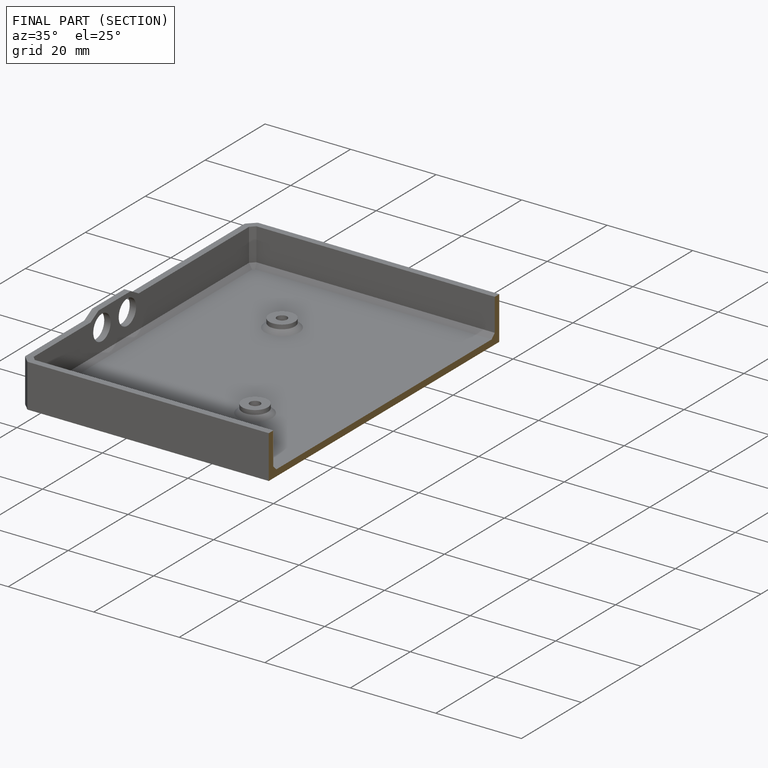
[diagram: finished part — half-section view (interior)]
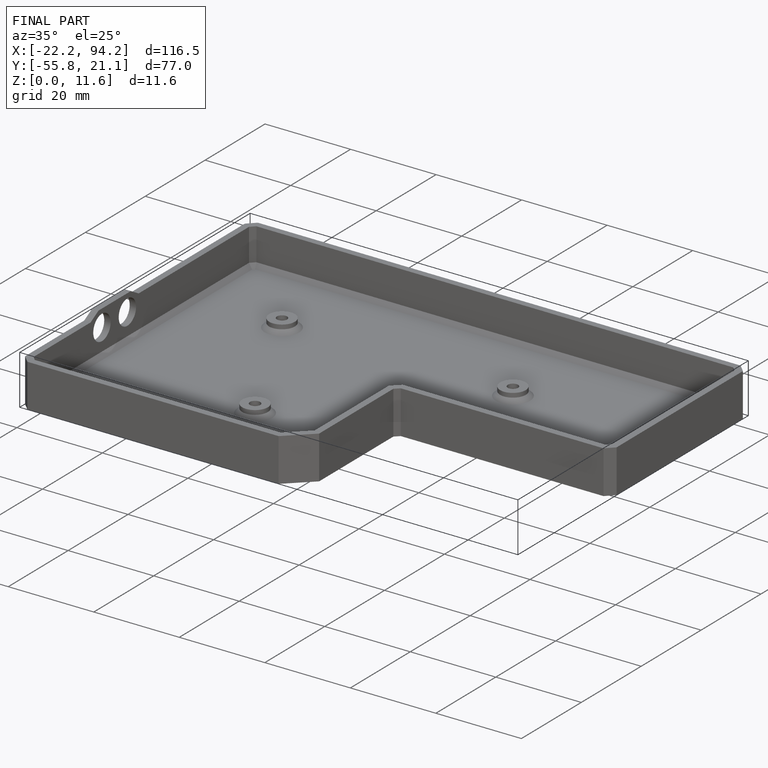
[diagram: finished part — iso view with bounding-box wireframe]
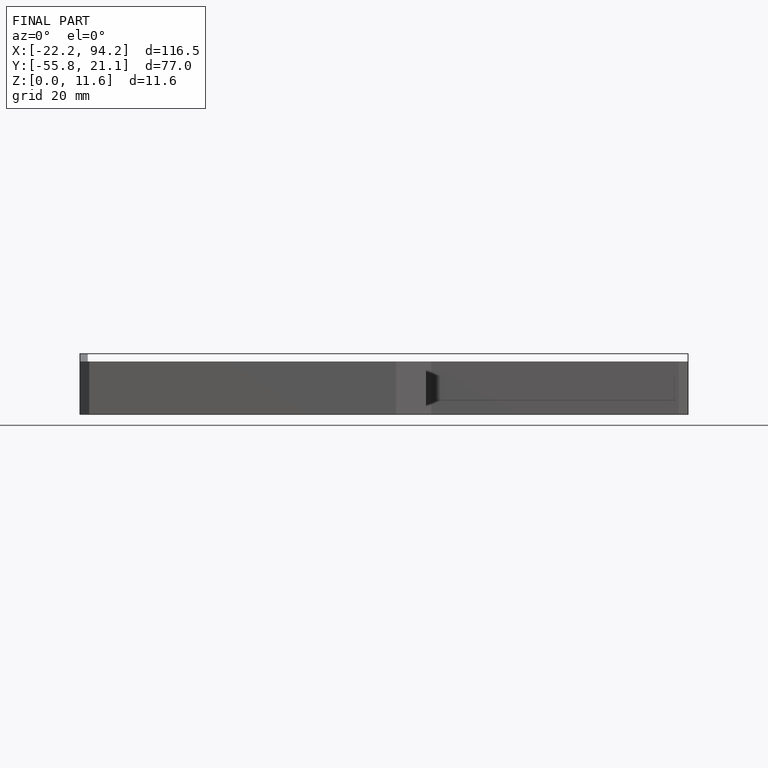
[diagram: finished part — front view with bounding-box wireframe]
